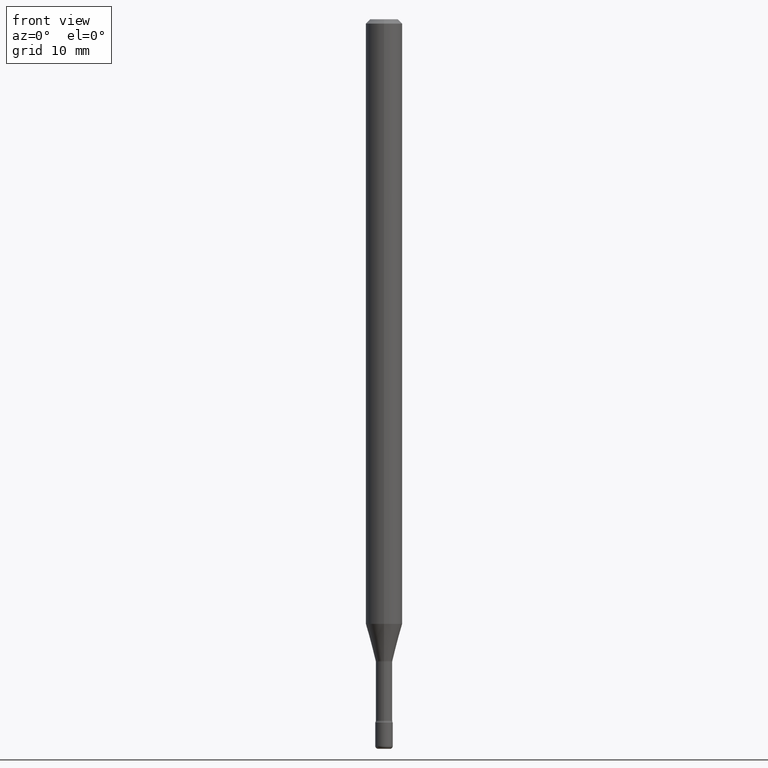
[diagram: clean part render]
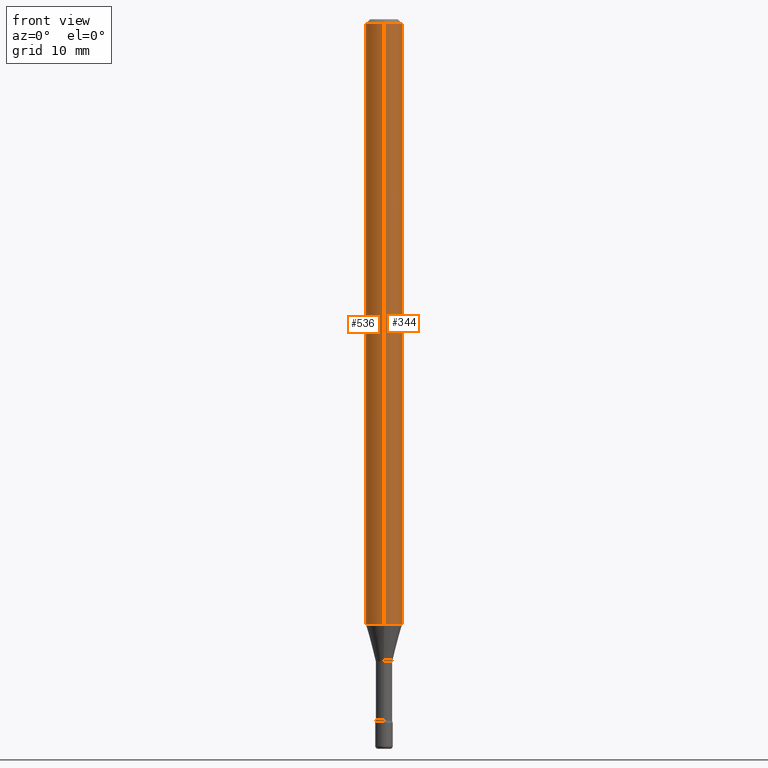
[diagram: same view with one multi-face feature highlighted, each face labeled with its STEP entity id]
A machine part, front view. The highlighted faces form ONE feature: a constant-radius fillet chain: 2 tangent blend faces with common blend radius 1.5875 mm. The faces share edges in the B-rep.
Their STEP definitions:
[1] entity #536 (Cylinder):
#4 = DIRECTION ( 'NONE',  ( -6.982962677686265922E-15, -1.000000000000000000, 4.370956789862821150E-15 ) ) ;
#5 = CYLINDRICAL_SURFACE ( 'NONE', #219, 0.06250000000000000000 ) ;
#60 = CARTESIAN_POINT ( 'NONE',  ( 4.440892098500625669E-16, 0.06250000000000000000, 2.598580986250918563E-16 ) ) ;
#63 = CARTESIAN_POINT ( 'NONE',  ( -4.364351673553412809E-16, -0.06250000000000725808, -2.071990657300387451 ) ) ;
#102 = DIRECTION ( 'NONE',  ( -2.445494318149261734E-29, 3.491444804258467311E-15, 1.000000000000000000 ) ) ;
#107 = EDGE_CURVE ( 'NONE', #515, #282, #152, .T. ) ;
#113 = DIRECTION ( 'NONE',  ( -2.445494318149262015E-29, 3.491444804258467311E-15, 1.000000000000000000 ) ) ;
#135 = CARTESIAN_POINT ( 'NONE',  ( 4.440892098501130047E-16, 0.06249999999999274886, -2.071990657300387895 ) ) ;
#152 = LINE ( 'NONE', #60, #429 ) ;
#164 = EDGE_CURVE ( 'NONE', #548, #231, #359, .T. ) ;
#167 = CIRCLE ( 'NONE', #476, 0.06250000000000000000 ) ;
#183 = DIRECTION ( 'NONE',  ( -6.982962677686265922E-15, -1.000000000000000000, 3.483106191921935554E-15 ) ) ;
#187 = ORIENTED_EDGE ( 'NONE', *, *, #164, .T. ) ;
#189 = DIRECTION ( 'NONE',  ( -6.982962677686265922E-15, -1.000000000000000000, 3.491444804258466917E-15 ) ) ;
#199 = EDGE_CURVE ( 'NONE', #515, #548, #529, .T. ) ;
#219 = AXIS2_PLACEMENT_3D ( 'NONE', #448, #102, #189 ) ;
#224 = CARTESIAN_POINT ( 'NONE',  ( 3.668241477223899538E-31, -5.237167206387711025E-17, -0.01500000000000002720 ) ) ;
#231 = VERTEX_POINT ( 'NONE', #288 ) ;
#232 = CARTESIAN_POINT ( 'NONE',  ( 5.067041379686452960E-29, -7.234241014903525863E-15, -2.071990657300387895 ) ) ;
#245 = VECTOR ( 'NONE', #539, 39.37007874015748143 ) ;
#276 = CARTESIAN_POINT ( 'NONE',  ( -4.364351673553916201E-16, -0.06250000000000000000, 6.962886991574002702E-16 ) ) ;
#282 = VERTEX_POINT ( 'NONE', #514 ) ;
#288 = CARTESIAN_POINT ( 'NONE',  ( -4.364351673553912750E-16, -0.06250000000000005551, -0.01499999999999981036 ) ) ;
#300 = DIRECTION ( 'NONE',  ( -2.445494318149261734E-29, 3.491444804258467311E-15, 1.000000000000000000 ) ) ;
#318 = AXIS2_PLACEMENT_3D ( 'NONE', #232, #403, #4 ) ;
#359 = LINE ( 'NONE', #276, #245 ) ;
#386 = EDGE_CURVE ( 'NONE', #282, #231, #167, .T. ) ;
#400 = FACE_OUTER_BOUND ( 'NONE', #426, .T. ) ;
#403 = DIRECTION ( 'NONE',  ( -2.445494318149261734E-29, 3.491444804258467311E-15, 1.000000000000000000 ) ) ;
#408 = ORIENTED_EDGE ( 'NONE', *, *, #386, .F. ) ;
#426 = EDGE_LOOP ( 'NONE', ( #562, #498, #187, #408 ) ) ;
#429 = VECTOR ( 'NONE', #113, 39.37007874015748143 ) ;
#448 = CARTESIAN_POINT ( 'NONE',  ( -1.169113584055446105E-44, 1.669184350826100908E-30, 4.780733988912460139E-16 ) ) ;
#476 = AXIS2_PLACEMENT_3D ( 'NONE', #224, #300, #183 ) ;
#498 = ORIENTED_EDGE ( 'NONE', *, *, #199, .T. ) ;
#514 = CARTESIAN_POINT ( 'NONE',  ( 4.440892098501134977E-16, 0.06249999999999993755, -0.01500000000000024578 ) ) ;
#515 = VERTEX_POINT ( 'NONE', #135 ) ;
#529 = CIRCLE ( 'NONE', #318, 0.06250000000000000000 ) ;
#536 = ADVANCED_FACE ( 'NONE', ( #400 ), #5, .T. ) ;
#539 = DIRECTION ( 'NONE',  ( -2.445494318149262015E-29, 3.491444804258467311E-15, 1.000000000000000000 ) ) ;
#548 = VERTEX_POINT ( 'NONE', #63 ) ;
#562 = ORIENTED_EDGE ( 'NONE', *, *, #107, .F. ) ;
[2] entity #344 (Cylinder):
#57 = AXIS2_PLACEMENT_3D ( 'NONE', #422, #201, #166 ) ;
#60 = CARTESIAN_POINT ( 'NONE',  ( 4.440892098500625669E-16, 0.06250000000000000000, 2.598580986250918563E-16 ) ) ;
#63 = CARTESIAN_POINT ( 'NONE',  ( -4.364351673553412809E-16, -0.06250000000000725808, -2.071990657300387451 ) ) ;
#107 = EDGE_CURVE ( 'NONE', #515, #282, #152, .T. ) ;
#113 = DIRECTION ( 'NONE',  ( -2.445494318149262015E-29, 3.491444804258467311E-15, 1.000000000000000000 ) ) ;
#132 = AXIS2_PLACEMENT_3D ( 'NONE', #377, #554, #331 ) ;
#134 = CIRCLE ( 'NONE', #161, 0.06250000000000000000 ) ;
#135 = CARTESIAN_POINT ( 'NONE',  ( 4.440892098501130047E-16, 0.06249999999999274886, -2.071990657300387895 ) ) ;
#152 = LINE ( 'NONE', #60, #429 ) ;
#161 = AXIS2_PLACEMENT_3D ( 'NONE', #569, #568, #217 ) ;
#164 = EDGE_CURVE ( 'NONE', #548, #231, #359, .T. ) ;
#166 = DIRECTION ( 'NONE',  ( -6.982962677686265922E-15, -1.000000000000000000, 4.370956789862821150E-15 ) ) ;
#178 = ORIENTED_EDGE ( 'NONE', *, *, #342, .T. ) ;
#201 = DIRECTION ( 'NONE',  ( -2.445494318149261734E-29, 3.491444804258467311E-15, 1.000000000000000000 ) ) ;
#206 = CYLINDRICAL_SURFACE ( 'NONE', #132, 0.06250000000000000000 ) ;
#207 = FACE_OUTER_BOUND ( 'NONE', #396, .T. ) ;
#209 = ORIENTED_EDGE ( 'NONE', *, *, #107, .T. ) ;
#212 = ORIENTED_EDGE ( 'NONE', *, *, #164, .F. ) ;
#217 = DIRECTION ( 'NONE',  ( -6.982962677686265922E-15, -1.000000000000000000, 3.483106191921935554E-15 ) ) ;
#231 = VERTEX_POINT ( 'NONE', #288 ) ;
#245 = VECTOR ( 'NONE', #539, 39.37007874015748143 ) ;
#276 = CARTESIAN_POINT ( 'NONE',  ( -4.364351673553916201E-16, -0.06250000000000000000, 6.962886991574002702E-16 ) ) ;
#282 = VERTEX_POINT ( 'NONE', #514 ) ;
#288 = CARTESIAN_POINT ( 'NONE',  ( -4.364351673553912750E-16, -0.06250000000000005551, -0.01499999999999981036 ) ) ;
#331 = DIRECTION ( 'NONE',  ( -6.982962677686265922E-15, -1.000000000000000000, 3.491444804258466917E-15 ) ) ;
#342 = EDGE_CURVE ( 'NONE', #548, #515, #517, .T. ) ;
#344 = ADVANCED_FACE ( 'NONE', ( #207 ), #206, .T. ) ;
#359 = LINE ( 'NONE', #276, #245 ) ;
#367 = EDGE_CURVE ( 'NONE', #231, #282, #134, .T. ) ;
#377 = CARTESIAN_POINT ( 'NONE',  ( -1.169113584055446105E-44, 1.669184350826100908E-30, 4.780733988912460139E-16 ) ) ;
#396 = EDGE_LOOP ( 'NONE', ( #178, #209, #486, #212 ) ) ;
#422 = CARTESIAN_POINT ( 'NONE',  ( 5.067041379686452960E-29, -7.234241014903525863E-15, -2.071990657300387895 ) ) ;
#429 = VECTOR ( 'NONE', #113, 39.37007874015748143 ) ;
#486 = ORIENTED_EDGE ( 'NONE', *, *, #367, .F. ) ;
#514 = CARTESIAN_POINT ( 'NONE',  ( 4.440892098501134977E-16, 0.06249999999999993755, -0.01500000000000024578 ) ) ;
#515 = VERTEX_POINT ( 'NONE', #135 ) ;
#517 = CIRCLE ( 'NONE', #57, 0.06250000000000000000 ) ;
#539 = DIRECTION ( 'NONE',  ( -2.445494318149262015E-29, 3.491444804258467311E-15, 1.000000000000000000 ) ) ;
#548 = VERTEX_POINT ( 'NONE', #63 ) ;
#554 = DIRECTION ( 'NONE',  ( -2.445494318149261734E-29, 3.491444804258467311E-15, 1.000000000000000000 ) ) ;
#568 = DIRECTION ( 'NONE',  ( -2.445494318149261734E-29, 3.491444804258467311E-15, 1.000000000000000000 ) ) ;
#569 = CARTESIAN_POINT ( 'NONE',  ( 3.668241477223899538E-31, -5.237167206387711025E-17, -0.01500000000000002720 ) ) ;